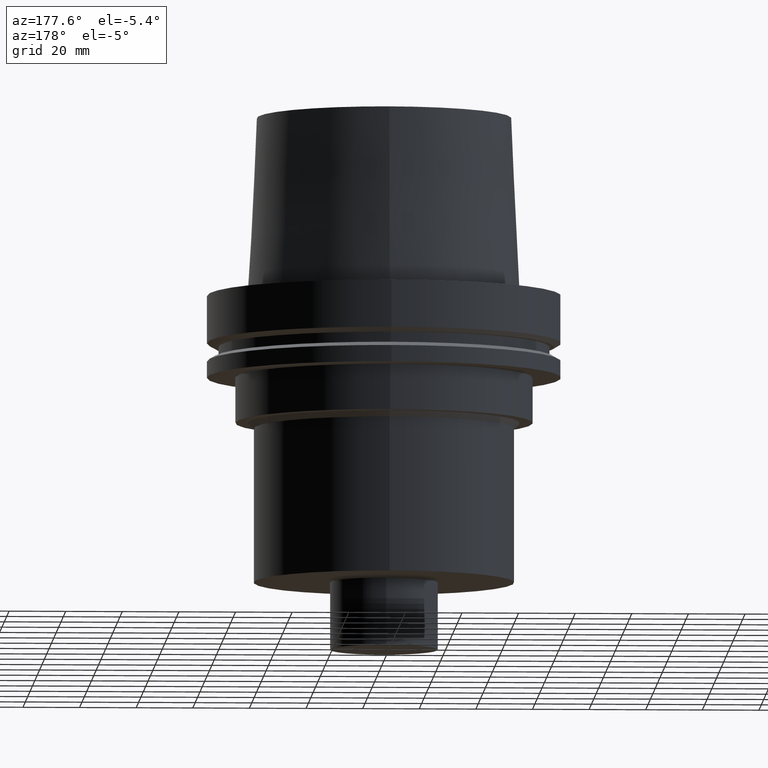
[diagram: clean part render]
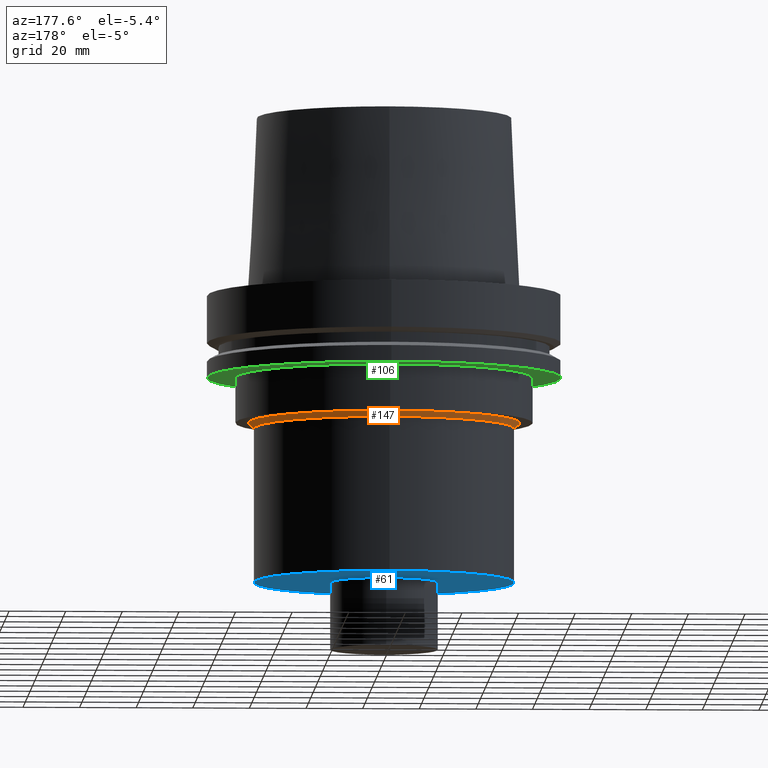
[diagram: same view with three faces highlighted in distinct colors, each labeled with its STEP entity id]
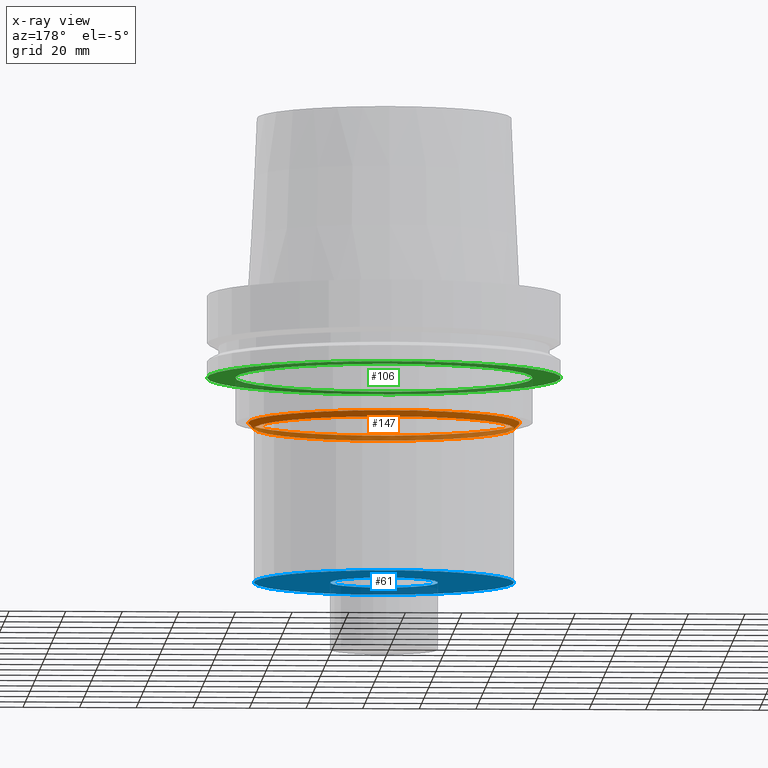
[diagram: x-ray of the same camera — body ghosted, the three highlighted faces saturated]
A machine part, auxiliary view with three faces highlighted in distinct colors.
The next image is the same camera in x-ray (body ghosted, the three faces saturated) — at least one of them is partly hidden behind the body in this view.
Their STEP definitions:

[orange] entity #147 — the highlighted conical surface has half-angle 45 deg.
#122=EDGE_CURVE('Unnamed[1]',#264,#264,#265,.T.);
#142=EDGE_CURVE('Unnamed[1]',#295,#295,#296,.T.);
#147=ADVANCED_FACE('Unnamed[1]',(#302,#303),#304,.T.);
#264=VERTEX_POINT('',#435);
#265=CIRCLE('',#436,45.9999999999999);
#295=VERTEX_POINT('',#475);
#296=CIRCLE('',#476,47.9999999999999);
#302=FACE_BOUND('',#484,.T.);
#303=FACE_BOUND('',#485,.T.);
#304=CONICAL_SURFACE('',#486,46.9999999999999,0.785398163397452);
#435=CARTESIAN_POINT('',(2.87791997799629E-015,45.9999999999999,-47.0000000000001));
#436=AXIS2_PLACEMENT_3D('',#602,#603,#604);
#475=CARTESIAN_POINT('',(2.75545529808155E-015,47.9999999999999,-45.0000000000001));
#476=AXIS2_PLACEMENT_3D('',#635,#636,#637);
#484=EDGE_LOOP('',(#642));
#485=EDGE_LOOP('',(#643));
#486=AXIS2_PLACEMENT_3D('',#644,#645,#646);
#602=CARTESIAN_POINT('',(2.87791997799629E-015,5.75583995599257E-015,-47.0000000000001));
#603=DIRECTION('',(6.12323399573676E-017,1.22464679914717E-016,-1.0));
#604=DIRECTION('',(-1.23259516440783E-032,1.0,1.22464679914717E-016));
#635=CARTESIAN_POINT('',(2.75545529808155E-015,5.5109105961631E-015,-45.0000000000001));
#636=DIRECTION('',(6.12323399573676E-017,1.22464679914693E-016,-1.0));
#637=DIRECTION('',(-1.23259516440783E-032,1.0,1.22464679914693E-016));
#642=ORIENTED_EDGE('',*,*,#122,.F.);
#643=ORIENTED_EDGE('',*,*,#142,.T.);
#644=CARTESIAN_POINT('',(2.81668763803892E-015,5.63337527607784E-015,-46.0000000000001));
#645=DIRECTION('',(-6.12323399573676E-017,-1.22464679914705E-016,1.0));
#646=DIRECTION('',(-1.23259516440783E-032,1.0,1.22464679914705E-016));

[blue] entity #61 — the highlighted planar face has unit normal (0, 0, -1).
#61=ADVANCED_FACE('Unnamed[1]',(#168,#169),#170,.T.);
#88=EDGE_CURVE('Unnamed[1]',#210,#210,#211,.T.);
#131=EDGE_CURVE('Unnamed[1]',#278,#278,#279,.T.);
#168=FACE_BOUND('',#317,.T.);
#169=FACE_OUTER_BOUND('',#318,.T.);
#170=PLANE('',#319);
#210=VERTEX_POINT('',#368);
#211=CIRCLE('',#369,45.9999999999999);
#278=VERTEX_POINT('',#453);
#279=CIRCLE('',#454,19.05);
#317=EDGE_LOOP('',(#493));
#318=EDGE_LOOP('',(#494));
#319=AXIS2_PLACEMENT_3D('',#495,#496,#497);
#368=CARTESIAN_POINT('',(6.22120573966853E-015,46.0,-101.6));
#369=AXIS2_PLACEMENT_3D('',#540,#541,#542);
#453=CARTESIAN_POINT('',(6.22120573966853E-015,19.05,-101.6));
#454=AXIS2_PLACEMENT_3D('',#617,#618,#619);
#493=ORIENTED_EDGE('',*,*,#131,.F.);
#494=ORIENTED_EDGE('',*,*,#88,.T.);
#495=CARTESIAN_POINT('',(6.22120573966853E-015,32.525,-101.6));
#496=DIRECTION('',(6.12323399573677E-017,1.22464679914735E-016,-1.0));
#497=DIRECTION('',(-1.23259516440783E-032,1.0,1.22464679914735E-016));
#540=CARTESIAN_POINT('',(6.22120573966853E-015,1.24424114793371E-014,-101.6));
#541=DIRECTION('',(6.12323399573676E-017,1.22464679914717E-016,-1.0));
#542=DIRECTION('',(-1.23259516440783E-032,1.0,1.22464679914717E-016));
#617=CARTESIAN_POINT('',(6.22120573966853E-015,1.24424114793371E-014,-101.6));
#618=DIRECTION('',(6.12323399573676E-017,1.22464679914697E-016,-1.0));
#619=DIRECTION('',(-1.23259516440802E-032,1.0,1.22464679914697E-016));

[green] entity #106 — the highlighted planar face has unit normal (0, 0, -1).
#106=ADVANCED_FACE('Unnamed[1]',(#239,#240),#241,.T.);
#108=EDGE_CURVE('Unnamed[1]',#243,#243,#244,.T.);
#135=EDGE_CURVE('Unnamed[1]',#284,#284,#285,.T.);
#239=FACE_BOUND('',#403,.T.);
#240=FACE_OUTER_BOUND('',#404,.T.);
#241=PLANE('',#405);
#243=VERTEX_POINT('',#408);
#244=CIRCLE('',#409,52.5000000000003);
#284=VERTEX_POINT('',#461);
#285=CIRCLE('',#462,62.5);
#403=EDGE_LOOP('',(#574));
#404=EDGE_LOOP('',(#575));
#405=AXIS2_PLACEMENT_3D('',#576,#577,#578);
#408=CARTESIAN_POINT('',(1.77573785876367E-015,52.5000000000003,-29.0000000000001));
#409=AXIS2_PLACEMENT_3D('',#579,#580,#581);
#461=CARTESIAN_POINT('',(1.77573785876367E-015,62.5,-29.0000000000001));
#462=AXIS2_PLACEMENT_3D('',#623,#624,#625);
#574=ORIENTED_EDGE('',*,*,#108,.F.);
#575=ORIENTED_EDGE('',*,*,#135,.T.);
#576=CARTESIAN_POINT('',(1.77573785876367E-015,57.5000000000002,-29.0000000000001));
#577=DIRECTION('',(6.12323399573677E-017,1.22464679914735E-016,-1.0));
#578=DIRECTION('',(-1.23259516440783E-032,1.0,1.22464679914735E-016));
#579=CARTESIAN_POINT('',(1.77573785876367E-015,3.55147571752733E-015,-29.0000000000001));
#580=DIRECTION('',(6.12323399573677E-017,1.22464679914708E-016,-1.0));
#581=DIRECTION('',(-1.23259516440782E-032,1.0,1.22464679914708E-016));
#623=CARTESIAN_POINT('',(1.77573785876367E-015,3.55147571752733E-015,-29.0000000000001));
#624=DIRECTION('',(6.12323399573677E-017,1.22464679914723E-016,-1.0));
#625=DIRECTION('',(-1.23259516440783E-032,1.0,1.22464679914723E-016));